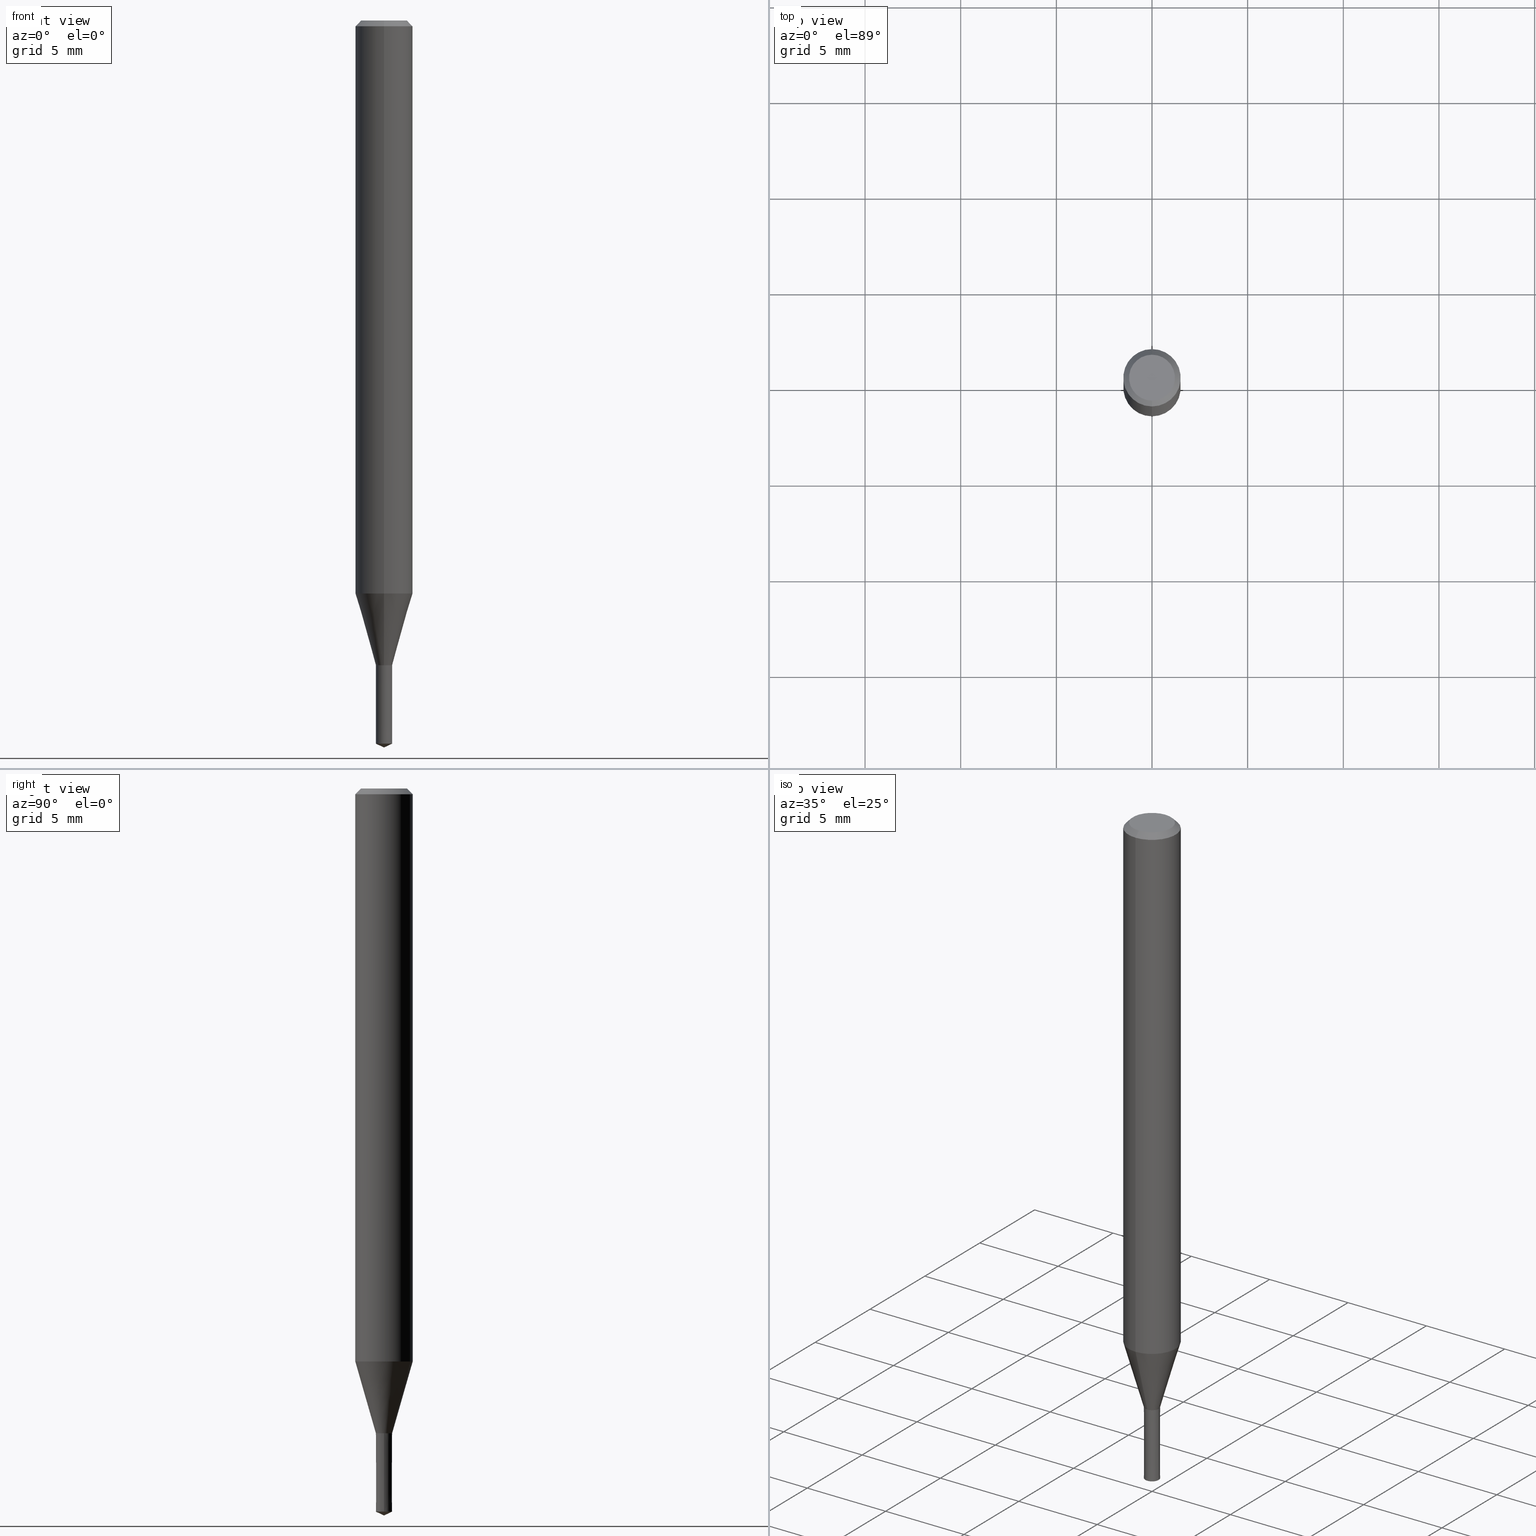
[diagram: canonical four-view strip — front | top / right | iso, engineering-drawing reading convention]
A machine part, canonical four-view strip (front | top / right | iso — engineering-drawing reading convention). The complete STEP part file that produces these views, byte-faithful:
ISO-10303-21;
HEADER;
FILE_DESCRIPTION(('no description'),'unknown implementation level');
FILE_NAME('UTDSX2085-043-Huellk.stp','  ',('CIMSOURCE GmbH'),('CADClick - KiM GmbH - www.kimweb.de'),'unknown preprocess','ACIS','unknown authorization');
FILE_SCHEMA(('automotive_design'));
ENDSEC;
DATA;
#1=MECHANICAL_DESIGN_GEOMETRIC_PRESENTATION_REPRESENTATION(' ',(#14,#15,#16,#17,#18,#19,#20,#21,#22,#23,#24,#25,#26,#27,#28,#29,#30,#31,#32,#33,#34,#35,#36,#37,#38,#39,#40,#41,#42,#43,#44,#45,#46,#47,#48,#49,#50,#51,#52,#53,#54,#55,#56,#57,#58,#59,#60,#61,#62,#63,#64,#65,#66,#67,#68,#69,#70,#71),#10);
#2=PRODUCT_DEFINITION_CONTEXT('',#72,'design');
#3=APPLICATION_PROTOCOL_DEFINITION('INTERNATIONAL STANDARD','automotive_design',1994,#72);
#4=PRODUCT_CATEGORY_RELATIONSHIP('NONE','NONE',#73,#74);
#5=SHAPE_DEFINITION_REPRESENTATION(#75,#76);
#6=PRODUCT_DEFINITION_CONTEXT('',#77,'design');
#7=APPLICATION_PROTOCOL_DEFINITION('INTERNATIONAL STANDARD','automotive_design',1994,#77);
#8=PRODUCT_CATEGORY_RELATIONSHIP('NONE','NONE',#78,#79);
#9=SHAPE_DEFINITION_REPRESENTATION(#80,#81);
#10= (GEOMETRIC_REPRESENTATION_CONTEXT(3)GLOBAL_UNCERTAINTY_ASSIGNED_CONTEXT((#84))GLOBAL_UNIT_ASSIGNED_CONTEXT((#86,#87,#88))REPRESENTATION_CONTEXT('NONE','WORKSPACE'));
#14=STYLED_ITEM('',(#90),#91);
#15=STYLED_ITEM('',(#92),#93);
#16=STYLED_ITEM('',(#94),#95);
#17=STYLED_ITEM('',(#96),#97);
#18=STYLED_ITEM('',(#98),#99);
#19=STYLED_ITEM('',(#100),#101);
#20=STYLED_ITEM('',(#102),#103);
#21=STYLED_ITEM('',(#104),#105);
#22=STYLED_ITEM('',(#106),#107);
#23=STYLED_ITEM('',(#108),#109);
#24=STYLED_ITEM('',(#110),#111);
#25=STYLED_ITEM('',(#112),#113);
#26=STYLED_ITEM('',(#114),#115);
#27=STYLED_ITEM('',(#116),#117);
#28=STYLED_ITEM('',(#118),#119);
#29=STYLED_ITEM('',(#120),#121);
#30=STYLED_ITEM('',(#122),#123);
#31=STYLED_ITEM('',(#124),#125);
#32=STYLED_ITEM('',(#126),#127);
#33=STYLED_ITEM('',(#128),#129);
#34=STYLED_ITEM('',(#130),#131);
#35=STYLED_ITEM('',(#132),#133);
#36=STYLED_ITEM('',(#134),#135);
#37=STYLED_ITEM('',(#136),#137);
#38=STYLED_ITEM('',(#138),#139);
#39=STYLED_ITEM('',(#140),#141);
#40=STYLED_ITEM('',(#142),#143);
#41=STYLED_ITEM('',(#144),#145);
#42=STYLED_ITEM('',(#146),#147);
#43=STYLED_ITEM('',(#148),#149);
#44=STYLED_ITEM('',(#150),#151);
#45=STYLED_ITEM('',(#152),#153);
#46=STYLED_ITEM('',(#154),#155);
#47=STYLED_ITEM('',(#156),#157);
#48=STYLED_ITEM('',(#158),#159);
#49=STYLED_ITEM('',(#160),#161);
#50=STYLED_ITEM('',(#162),#163);
#51=STYLED_ITEM('',(#164),#165);
#52=STYLED_ITEM('',(#166),#167);
#53=STYLED_ITEM('',(#168),#169);
#54=STYLED_ITEM('',(#170),#171);
#55=STYLED_ITEM('',(#172),#173);
#56=STYLED_ITEM('',(#174),#175);
#57=STYLED_ITEM('',(#176),#177);
#58=STYLED_ITEM('',(#178),#179);
#59=STYLED_ITEM('',(#180),#181);
#60=STYLED_ITEM('',(#182),#183);
#61=STYLED_ITEM('',(#184),#185);
#62=STYLED_ITEM('',(#186),#187);
#63=STYLED_ITEM('',(#188),#189);
#64=STYLED_ITEM('',(#190),#191);
#65=STYLED_ITEM('',(#192),#193);
#66=STYLED_ITEM('',(#194),#195);
#67=STYLED_ITEM('',(#196),#197);
#68=STYLED_ITEM('',(#198),#199);
#69=STYLED_ITEM('',(#200),#201);
#70=STYLED_ITEM('',(#202),#203);
#71=STYLED_ITEM('',(#204),#205);
#72=APPLICATION_CONTEXT(' ');
#73=PRODUCT_CATEGORY('part','NONE');
#74=PRODUCT_RELATED_PRODUCT_CATEGORY('detail',' ',(#206));
#75=PRODUCT_DEFINITION_SHAPE('NONE','NONE',#207);
#76=ADVANCED_BREP_SHAPE_REPRESENTATION('1',(#159,#208),#10);
#77=APPLICATION_CONTEXT(' ');
#78=PRODUCT_CATEGORY('part','NONE');
#79=PRODUCT_RELATED_PRODUCT_CATEGORY('detail',' ',(#209));
#80=PRODUCT_DEFINITION_SHAPE('NONE','NONE',#210);
#81=ADVANCED_BREP_SHAPE_REPRESENTATION('2',(#141,#211),#10);
#84=UNCERTAINTY_MEASURE_WITH_UNIT(LENGTH_MEASURE(1.0E-006),#86,'','');
#86= (CONVERSION_BASED_UNIT('MILLIMETRE',#214)LENGTH_UNIT()NAMED_UNIT(#217));
#87= (NAMED_UNIT(#219)PLANE_ANGLE_UNIT()SI_UNIT($,.RADIAN.));
#88= (NAMED_UNIT(#219)SOLID_ANGLE_UNIT()SI_UNIT($,.STERADIAN.));
#90=PRESENTATION_STYLE_ASSIGNMENT((#225));
#91=ADVANCED_FACE('',(#226),#227,.T.);
#92=PRESENTATION_STYLE_ASSIGNMENT((#228));
#93=EDGE_CURVE('',#163,#131,#229,.T.);
#94=PRESENTATION_STYLE_ASSIGNMENT((#230));
#95=VERTEX_POINT('',#231);
#96=PRESENTATION_STYLE_ASSIGNMENT((#232));
#97=ADVANCED_FACE('',(#233),#234,.T.);
#98=PRESENTATION_STYLE_ASSIGNMENT((#235));
#99=ADVANCED_FACE('',(#236),#237,.T.);
#100=PRESENTATION_STYLE_ASSIGNMENT((#238));
#101=ADVANCED_FACE('',(#239),#240,.T.);
#102=PRESENTATION_STYLE_ASSIGNMENT((#241));
#103=ADVANCED_FACE('',(#242),#243,.T.);
#104=PRESENTATION_STYLE_ASSIGNMENT((#244));
#105=VERTEX_POINT('',#245);
#106=PRESENTATION_STYLE_ASSIGNMENT((#246));
#107=ADVANCED_FACE('',(#247),#248,.T.);
#108=PRESENTATION_STYLE_ASSIGNMENT((#249));
#109=EDGE_CURVE('',#169,#163,#250,.T.);
#110=PRESENTATION_STYLE_ASSIGNMENT((#251));
#111=VERTEX_POINT('',#252);
#112=PRESENTATION_STYLE_ASSIGNMENT((#253));
#113=VERTEX_POINT('',#254);
#114=PRESENTATION_STYLE_ASSIGNMENT((#255));
#115=EDGE_CURVE('',#199,#173,#256,.T.);
#116=PRESENTATION_STYLE_ASSIGNMENT((#257));
#117=EDGE_CURVE('',#177,#199,#258,.T.);
#118=PRESENTATION_STYLE_ASSIGNMENT((#259));
#119=EDGE_CURVE('',#177,#105,#260,.T.);
#120=PRESENTATION_STYLE_ASSIGNMENT((#261));
#121=EDGE_CURVE('',#105,#183,#262,.T.);
#122=PRESENTATION_STYLE_ASSIGNMENT((#263));
#123=EDGE_CURVE('',#189,#131,#264,.T.);
#124=PRESENTATION_STYLE_ASSIGNMENT((#265));
#125=ADVANCED_FACE('',(#266),#267,.T.);
#126=PRESENTATION_STYLE_ASSIGNMENT((#268));
#127=EDGE_CURVE('',#183,#197,#269,.T.);
#128=PRESENTATION_STYLE_ASSIGNMENT((#270));
#129=EDGE_CURVE('',#183,#111,#271,.T.);
#130=PRESENTATION_STYLE_ASSIGNMENT((#272));
#131=VERTEX_POINT('',#273);
#132=PRESENTATION_STYLE_ASSIGNMENT((#274));
#133=EDGE_CURVE('',#111,#183,#275,.T.);
#134=PRESENTATION_STYLE_ASSIGNMENT((#276));
#135=EDGE_CURVE('',#199,#113,#277,.T.);
#136=PRESENTATION_STYLE_ASSIGNMENT((#278));
#137=EDGE_CURVE('',#167,#197,#279,.T.);
#138=PRESENTATION_STYLE_ASSIGNMENT((#280));
#139=EDGE_CURVE('',#131,#189,#281,.T.);
#140=PRESENTATION_STYLE_ASSIGNMENT((#282));
#141=MANIFOLD_SOLID_BREP('2',#283);
#142=PRESENTATION_STYLE_ASSIGNMENT((#284));
#143=EDGE_CURVE('',#95,#113,#285,.T.);
#144=PRESENTATION_STYLE_ASSIGNMENT((#286));
#145=ADVANCED_FACE('',(#287),#288,.T.);
#146=PRESENTATION_STYLE_ASSIGNMENT((#289));
#147=EDGE_CURVE('',#111,#177,#290,.T.);
#148=PRESENTATION_STYLE_ASSIGNMENT((#291));
#149=EDGE_CURVE('',#163,#169,#292,.T.);
#150=PRESENTATION_STYLE_ASSIGNMENT((#293));
#151=EDGE_CURVE('',#113,#105,#294,.T.);
#152=PRESENTATION_STYLE_ASSIGNMENT((#295));
#153=ADVANCED_FACE('',(#296),#297,.T.);
#154=PRESENTATION_STYLE_ASSIGNMENT((#298));
#155=EDGE_CURVE('',#131,#157,#299,.T.);
#156=PRESENTATION_STYLE_ASSIGNMENT((#300));
#157=VERTEX_POINT('',#301);
#158=PRESENTATION_STYLE_ASSIGNMENT((#302));
#159=MANIFOLD_SOLID_BREP('1',#303);
#160=PRESENTATION_STYLE_ASSIGNMENT((#304));
#161=EDGE_CURVE('',#95,#173,#305,.T.);
#162=PRESENTATION_STYLE_ASSIGNMENT((#306));
#163=VERTEX_POINT('',#307);
#164=PRESENTATION_STYLE_ASSIGNMENT((#308));
#165=ADVANCED_FACE('',(#309),#310,.T.);
#166=PRESENTATION_STYLE_ASSIGNMENT((#311));
#167=VERTEX_POINT('',#312);
#168=PRESENTATION_STYLE_ASSIGNMENT((#313));
#169=VERTEX_POINT('',#314);
#170=PRESENTATION_STYLE_ASSIGNMENT((#315));
#171=EDGE_CURVE('',#157,#189,#316,.T.);
#172=PRESENTATION_STYLE_ASSIGNMENT((#317));
#173=VERTEX_POINT('',#318);
#174=PRESENTATION_STYLE_ASSIGNMENT((#319));
#175=EDGE_CURVE('',#105,#177,#320,.T.);
#176=PRESENTATION_STYLE_ASSIGNMENT((#321));
#177=VERTEX_POINT('',#322);
#178=PRESENTATION_STYLE_ASSIGNMENT((#323));
#179=ADVANCED_FACE('',(#324),#325,.T.);
#180=PRESENTATION_STYLE_ASSIGNMENT((#326));
#181=EDGE_CURVE('',#173,#95,#327,.T.);
#182=PRESENTATION_STYLE_ASSIGNMENT((#328));
#183=VERTEX_POINT('',#329);
#184=PRESENTATION_STYLE_ASSIGNMENT((#330));
#185=EDGE_CURVE('',#197,#167,#331,.T.);
#186=PRESENTATION_STYLE_ASSIGNMENT((#332));
#187=EDGE_CURVE('',#189,#169,#333,.T.);
#188=PRESENTATION_STYLE_ASSIGNMENT((#334));
#189=VERTEX_POINT('',#335);
#190=PRESENTATION_STYLE_ASSIGNMENT((#336));
#191=EDGE_CURVE('',#167,#111,#337,.T.);
#192=PRESENTATION_STYLE_ASSIGNMENT((#338));
#193=EDGE_CURVE('',#113,#199,#339,.T.);
#194=PRESENTATION_STYLE_ASSIGNMENT((#340));
#195=ADVANCED_FACE('',(#341),#342,.T.);
#196=PRESENTATION_STYLE_ASSIGNMENT((#343));
#197=VERTEX_POINT('',#344);
#198=PRESENTATION_STYLE_ASSIGNMENT((#345));
#199=VERTEX_POINT('',#346);
#200=PRESENTATION_STYLE_ASSIGNMENT((#347));
#201=ADVANCED_FACE('',(#348),#349,.T.);
#202=PRESENTATION_STYLE_ASSIGNMENT((#350));
#203=ADVANCED_FACE('',(#351),#352,.T.);
#204=PRESENTATION_STYLE_ASSIGNMENT((#353));
#205=ADVANCED_FACE('',(#354),#355,.T.);
#206=PRODUCT('1','1','PART-1-DESC',(#356));
#207=PRODUCT_DEFINITION('NONE','NONE',#357,#2);
#208=AXIS2_PLACEMENT_3D('',#358,#359,#360);
#209=PRODUCT('2','2','PART-2-DESC',(#361));
#210=PRODUCT_DEFINITION('NONE','NONE',#362,#6);
#211=AXIS2_PLACEMENT_3D('',#363,#364,#365);
#214=LENGTH_MEASURE_WITH_UNIT(LENGTH_MEASURE(1.0),#366);
#217=DIMENSIONAL_EXPONENTS(1.0,0.0,0.0,0.0,0.0,0.0,0.0);
#219=DIMENSIONAL_EXPONENTS(0.0,0.0,0.0,0.0,0.0,0.0,0.0);
#225=SURFACE_STYLE_USAGE(.BOTH.,#367);
#226=FACE_OUTER_BOUND('',#368,.T.);
#227=PLANE('',#369);
#228=CURVE_STYLE('',#370,POSITIVE_LENGTH_MEASURE(1.0E-006),#371);
#229=LINE('',#372,#373);
#230=POINT_STYLE(' ',#374,POSITIVE_LENGTH_MEASURE(1.0E-006),#375);
#231=CARTESIAN_POINT('',(0.0,1.2,0.0));
#232=SURFACE_STYLE_USAGE(.BOTH.,#376);
#233=FACE_OUTER_BOUND('',#377,.T.);
#234=CONICAL_SURFACE('',#378,0.9625,0.279311816116806);
#235=SURFACE_STYLE_USAGE(.BOTH.,#379);
#236=FACE_OUTER_BOUND('',#380,.T.);
#237=PLANE('',#381);
#238=SURFACE_STYLE_USAGE(.BOTH.,#382);
#239=FACE_OUTER_BOUND('',#383,.T.);
#240=CONICAL_SURFACE('',#384,1.35,0.785398163397447);
#241=SURFACE_STYLE_USAGE(.BOTH.,#385);
#242=FACE_OUTER_BOUND('',#386,.T.);
#243=CONICAL_SURFACE('',#387,0.2125,1.13446402291064);
#244=POINT_STYLE(' ',#388,POSITIVE_LENGTH_MEASURE(1.0E-006),#389);
#245=CARTESIAN_POINT('',(0.0,1.5,-29.951));
#246=SURFACE_STYLE_USAGE(.BOTH.,#390);
#247=FACE_OUTER_BOUND('',#391,.T.);
#248=PLANE('',#392);
#249=CURVE_STYLE('',#393,POSITIVE_LENGTH_MEASURE(1.0E-006),#394);
#250=CIRCLE('',#395,0.426);
#251=POINT_STYLE(' ',#396,POSITIVE_LENGTH_MEASURE(1.0E-006),#397);
#252=CARTESIAN_POINT('',(5.2045770037451E-017,-0.425,-33.6991339745962));
#253=POINT_STYLE(' ',#398,POSITIVE_LENGTH_MEASURE(1.0E-006),#399);
#254=CARTESIAN_POINT('',(0.0,1.5,-0.300000000000001));
#255=CURVE_STYLE('',#400,POSITIVE_LENGTH_MEASURE(1.0E-006),#401);
#256=LINE('',#402,#403);
#257=CURVE_STYLE('',#404,POSITIVE_LENGTH_MEASURE(1.0E-006),#405);
#258=LINE('',#406,#407);
#259=CURVE_STYLE('',#408,POSITIVE_LENGTH_MEASURE(1.0E-006),#409);
#260=CIRCLE('',#410,1.5);
#261=CURVE_STYLE('',#411,POSITIVE_LENGTH_MEASURE(1.0E-006),#412);
#262=LINE('',#413,#414);
#263=CURVE_STYLE('',#415,POSITIVE_LENGTH_MEASURE(1.0E-006),#416);
#264=CIRCLE('',#417,0.425);
#265=SURFACE_STYLE_USAGE(.BOTH.,#418);
#266=FACE_OUTER_BOUND('',#419,.T.);
#267=CONICAL_SURFACE('',#420,1.35,0.785398163397447);
#268=CURVE_STYLE('',#421,POSITIVE_LENGTH_MEASURE(1.0E-006),#422);
#269=LINE('',#423,#424);
#270=CURVE_STYLE('',#425,POSITIVE_LENGTH_MEASURE(1.0E-006),#426);
#271=CIRCLE('',#427,0.425);
#272=POINT_STYLE(' ',#428,POSITIVE_LENGTH_MEASURE(1.0E-006),#429);
#273=CARTESIAN_POINT('',(-0.425,0.0,-37.80181925));
#274=CURVE_STYLE('',#430,POSITIVE_LENGTH_MEASURE(1.0E-006),#431);
#275=CIRCLE('',#432,0.425);
#276=CURVE_STYLE('',#433,POSITIVE_LENGTH_MEASURE(1.0E-006),#434);
#277=CIRCLE('',#435,1.5);
#278=CURVE_STYLE('',#436,POSITIVE_LENGTH_MEASURE(1.0E-006),#437);
#279=CIRCLE('',#438,0.4255);
#280=CURVE_STYLE('',#439,POSITIVE_LENGTH_MEASURE(1.0E-006),#440);
#281=CIRCLE('',#441,0.425);
#282=SURFACE_STYLE_USAGE(.BOTH.,#442);
#283=CLOSED_SHELL('',(#103,#153,#107,#179,#205));
#284=CURVE_STYLE('',#443,POSITIVE_LENGTH_MEASURE(1.0E-006),#444);
#285=LINE('',#445,#446);
#286=SURFACE_STYLE_USAGE(.BOTH.,#447);
#287=FACE_OUTER_BOUND('',#448,.T.);
#288=CONICAL_SURFACE('',#449,0.9625,0.279311816116806);
#289=CURVE_STYLE('',#450,POSITIVE_LENGTH_MEASURE(1.0E-006),#451);
#290=LINE('',#452,#453);
#291=CURVE_STYLE('',#454,POSITIVE_LENGTH_MEASURE(1.0E-006),#455);
#292=CIRCLE('',#456,0.426);
#293=CURVE_STYLE('',#457,POSITIVE_LENGTH_MEASURE(1.0E-006),#458);
#294=LINE('',#459,#460);
#295=SURFACE_STYLE_USAGE(.BOTH.,#461);
#296=FACE_OUTER_BOUND('',#462,.T.);
#297=CONICAL_SURFACE('',#463,0.4255,0.000243794257923023);
#298=CURVE_STYLE('',#464,POSITIVE_LENGTH_MEASURE(1.0E-006),#465);
#299=LINE('',#466,#467);
#300=POINT_STYLE(' ',#468,POSITIVE_LENGTH_MEASURE(1.0E-006),#469);
#301=CARTESIAN_POINT('',(0.0,0.0,-38.0));
#302=SURFACE_STYLE_USAGE(.BOTH.,#470);
#303=CLOSED_SHELL('',(#195,#97,#203,#101,#99,#125,#165,#145,#201,#91));
#304=CURVE_STYLE('',#471,POSITIVE_LENGTH_MEASURE(1.0E-006),#472);
#305=CIRCLE('',#473,1.2);
#306=POINT_STYLE(' ',#474,POSITIVE_LENGTH_MEASURE(1.0E-006),#475);
#307=CARTESIAN_POINT('',(-0.426,0.0,-33.7));
#308=SURFACE_STYLE_USAGE(.BOTH.,#476);
#309=FACE_OUTER_BOUND('',#477,.T.);
#310=CYLINDRICAL_SURFACE('',#478,1.5);
#311=POINT_STYLE(' ',#479,POSITIVE_LENGTH_MEASURE(1.0E-006),#480);
#312=CARTESIAN_POINT('',(5.21070003551421E-017,-0.4255,-33.7));
#313=POINT_STYLE(' ',#481,POSITIVE_LENGTH_MEASURE(1.0E-006),#482);
#314=CARTESIAN_POINT('',(0.426,5.21682306728333E-017,-33.7));
#315=CURVE_STYLE('',#483,POSITIVE_LENGTH_MEASURE(1.0E-006),#484);
#316=LINE('',#485,#486);
#317=POINT_STYLE(' ',#487,POSITIVE_LENGTH_MEASURE(1.0E-006),#488);
#318=CARTESIAN_POINT('',(1.46952762458685E-016,-1.2,0.0));
#319=CURVE_STYLE('',#489,POSITIVE_LENGTH_MEASURE(1.0E-006),#490);
#320=CIRCLE('',#491,1.5);
#321=POINT_STYLE(' ',#492,POSITIVE_LENGTH_MEASURE(1.0E-006),#493);
#322=CARTESIAN_POINT('',(1.83690953073357E-016,-1.5,-29.951));
#323=SURFACE_STYLE_USAGE(.BOTH.,#494);
#324=FACE_OUTER_BOUND('',#495,.T.);
#325=CONICAL_SURFACE('',#496,0.4255,0.000243794257923023);
#326=CURVE_STYLE('',#497,POSITIVE_LENGTH_MEASURE(1.0E-006),#498);
#327=CIRCLE('',#499,1.2);
#328=POINT_STYLE(' ',#500,POSITIVE_LENGTH_MEASURE(1.0E-006),#501);
#329=CARTESIAN_POINT('',(0.0,0.425,-33.6991339745962));
#330=CURVE_STYLE('',#502,POSITIVE_LENGTH_MEASURE(1.0E-006),#503);
#331=CIRCLE('',#504,0.4255);
#332=CURVE_STYLE('',#505,POSITIVE_LENGTH_MEASURE(1.0E-006),#506);
#333=LINE('',#507,#508);
#334=POINT_STYLE(' ',#509,POSITIVE_LENGTH_MEASURE(1.0E-006),#510);
#335=CARTESIAN_POINT('',(0.425,5.2045770037451E-017,-37.80181925));
#336=CURVE_STYLE('',#511,POSITIVE_LENGTH_MEASURE(1.0E-006),#512);
#337=LINE('',#513,#514);
#338=CURVE_STYLE('',#515,POSITIVE_LENGTH_MEASURE(1.0E-006),#516);
#339=CIRCLE('',#517,1.5);
#340=SURFACE_STYLE_USAGE(.BOTH.,#518);
#341=FACE_OUTER_BOUND('',#519,.T.);
#342=CONICAL_SURFACE('',#520,0.42525,0.523598775598408);
#343=POINT_STYLE(' ',#521,POSITIVE_LENGTH_MEASURE(1.0E-006),#522);
#344=CARTESIAN_POINT('',(0.0,0.4255,-33.7));
#345=POINT_STYLE(' ',#523,POSITIVE_LENGTH_MEASURE(1.0E-006),#524);
#346=CARTESIAN_POINT('',(1.83690953073357E-016,-1.5,-0.300000000000001));
#347=SURFACE_STYLE_USAGE(.BOTH.,#525);
#348=FACE_OUTER_BOUND('',#526,.T.);
#349=CONICAL_SURFACE('',#527,0.42525,0.523598775598408);
#350=SURFACE_STYLE_USAGE(.BOTH.,#528);
#351=FACE_OUTER_BOUND('',#529,.T.);
#352=CYLINDRICAL_SURFACE('',#530,1.5);
#353=SURFACE_STYLE_USAGE(.BOTH.,#531);
#354=FACE_OUTER_BOUND('',#532,.T.);
#355=CONICAL_SURFACE('',#533,0.2125,1.13446402291064);
#356=PRODUCT_CONTEXT('',#72,'mechanical');
#357=PRODUCT_DEFINITION_FORMATION_WITH_SPECIFIED_SOURCE(' ','NONE',#206,.NOT_KNOWN.);
#358=CARTESIAN_POINT('',(0.0,0.0,0.0));
#359=DIRECTION('',(0.0,0.0,1.0));
#360=DIRECTION('',(1.0,0.0,0.0));
#361=PRODUCT_CONTEXT('',#77,'mechanical');
#362=PRODUCT_DEFINITION_FORMATION_WITH_SPECIFIED_SOURCE(' ','NONE',#209,.NOT_KNOWN.);
#363=CARTESIAN_POINT('',(0.0,0.0,0.0));
#364=DIRECTION('',(0.0,0.0,1.0));
#365=DIRECTION('',(1.0,0.0,0.0));
#366= (NAMED_UNIT(#217)LENGTH_UNIT()SI_UNIT(.MILLI.,.METRE.));
#367=SURFACE_SIDE_STYLE('',(#535));
#368=EDGE_LOOP('',(#536,#537));
#369=AXIS2_PLACEMENT_3D('',#538,#539,#540);
#370=DRAUGHTING_PRE_DEFINED_CURVE_FONT('continuous');
#371=COLOUR_RGB('',0.800000011920929,0.800000011920929,0.800000011920929);
#372=CARTESIAN_POINT('',(-0.4255,-5.21070003551422E-017,-35.750909625));
#373=VECTOR('',#541,1.0);
#374=PRE_DEFINED_MARKER('');
#375=COLOUR_RGB('',0.498039215803146,0.498039215803146,0.498039215803146);
#376=SURFACE_SIDE_STYLE('',(#542));
#377=EDGE_LOOP('',(#543,#544,#545,#546));
#378=AXIS2_PLACEMENT_3D('',#547,#548,#549);
#379=SURFACE_SIDE_STYLE('',(#550));
#380=EDGE_LOOP('',(#551,#552));
#381=AXIS2_PLACEMENT_3D('',#553,#554,#555);
#382=SURFACE_SIDE_STYLE('',(#556));
#383=EDGE_LOOP('',(#557,#558,#559,#560));
#384=AXIS2_PLACEMENT_3D('',#561,#562,#563);
#385=SURFACE_SIDE_STYLE('',(#564));
#386=EDGE_LOOP('',(#565,#566,#567));
#387=AXIS2_PLACEMENT_3D('',#568,#569,#570);
#388=PRE_DEFINED_MARKER('');
#389=COLOUR_RGB('',0.498039215803146,0.498039215803146,0.498039215803146);
#390=SURFACE_SIDE_STYLE('',(#571));
#391=EDGE_LOOP('',(#572,#573));
#392=AXIS2_PLACEMENT_3D('',#574,#575,#576);
#393=DRAUGHTING_PRE_DEFINED_CURVE_FONT('continuous');
#394=COLOUR_RGB('',0.800000011920929,0.800000011920929,0.800000011920929);
#395=AXIS2_PLACEMENT_3D('',#577,#578,#579);
#396=PRE_DEFINED_MARKER('');
#397=COLOUR_RGB('',0.498039215803146,0.498039215803146,0.498039215803146);
#398=PRE_DEFINED_MARKER('');
#399=COLOUR_RGB('',0.498039215803146,0.498039215803146,0.498039215803146);
#400=DRAUGHTING_PRE_DEFINED_CURVE_FONT('continuous');
#401=COLOUR_RGB('',0.498039215803146,0.498039215803146,0.498039215803146);
#402=CARTESIAN_POINT('',(1.65321857766021E-016,-1.35,-0.150000000000002));
#403=VECTOR('',#580,1.0);
#404=DRAUGHTING_PRE_DEFINED_CURVE_FONT('continuous');
#405=COLOUR_RGB('',0.498039215803146,0.498039215803146,0.498039215803146);
#406=CARTESIAN_POINT('',(1.83690953073357E-016,-1.5,-15.1255));
#407=VECTOR('',#581,1.0);
#408=DRAUGHTING_PRE_DEFINED_CURVE_FONT('continuous');
#409=COLOUR_RGB('',0.498039215803146,0.498039215803146,0.498039215803146);
#410=AXIS2_PLACEMENT_3D('',#582,#583,#584);
#411=DRAUGHTING_PRE_DEFINED_CURVE_FONT('continuous');
#412=COLOUR_RGB('',0.498039215803146,0.498039215803146,0.498039215803146);
#413=CARTESIAN_POINT('',(-1.17868361555404E-016,0.9625,-31.8250669872981));
#414=VECTOR('',#585,1.0);
#415=DRAUGHTING_PRE_DEFINED_CURVE_FONT('continuous');
#416=COLOUR_RGB('',0.800000011920929,0.800000011920929,0.800000011920929);
#417=AXIS2_PLACEMENT_3D('',#586,#587,#588);
#418=SURFACE_SIDE_STYLE('',(#589));
#419=EDGE_LOOP('',(#590,#591,#592,#593));
#420=AXIS2_PLACEMENT_3D('',#594,#595,#596);
#421=DRAUGHTING_PRE_DEFINED_CURVE_FONT('continuous');
#422=COLOUR_RGB('',0.498039215803146,0.498039215803146,0.498039215803146);
#423=CARTESIAN_POINT('',(-5.20763851962966E-017,0.42525,-33.6995669872981));
#424=VECTOR('',#597,1.0);
#425=DRAUGHTING_PRE_DEFINED_CURVE_FONT('continuous');
#426=COLOUR_RGB('',0.498039215803146,0.498039215803146,0.498039215803146);
#427=AXIS2_PLACEMENT_3D('',#598,#599,#600);
#428=PRE_DEFINED_MARKER('');
#429=COLOUR_RGB('',0.800000011920929,0.800000011920929,0.800000011920929);
#430=DRAUGHTING_PRE_DEFINED_CURVE_FONT('continuous');
#431=COLOUR_RGB('',0.498039215803146,0.498039215803146,0.498039215803146);
#432=AXIS2_PLACEMENT_3D('',#601,#602,#603);
#433=DRAUGHTING_PRE_DEFINED_CURVE_FONT('continuous');
#434=COLOUR_RGB('',0.498039215803146,0.498039215803146,0.498039215803146);
#435=AXIS2_PLACEMENT_3D('',#604,#605,#606);
#436=DRAUGHTING_PRE_DEFINED_CURVE_FONT('continuous');
#437=COLOUR_RGB('',0.498039215803146,0.498039215803146,0.498039215803146);
#438=AXIS2_PLACEMENT_3D('',#607,#608,#609);
#439=DRAUGHTING_PRE_DEFINED_CURVE_FONT('continuous');
#440=COLOUR_RGB('',0.800000011920929,0.800000011920929,0.800000011920929);
#441=AXIS2_PLACEMENT_3D('',#610,#611,#612);
#442=SURFACE_SIDE_STYLE('',(#613));
#443=DRAUGHTING_PRE_DEFINED_CURVE_FONT('continuous');
#444=COLOUR_RGB('',0.498039215803146,0.498039215803146,0.498039215803146);
#445=CARTESIAN_POINT('',(-1.65321857766021E-016,1.35,-0.150000000000002));
#446=VECTOR('',#614,1.0);
#447=SURFACE_SIDE_STYLE('',(#615));
#448=EDGE_LOOP('',(#616,#617,#618,#619));
#449=AXIS2_PLACEMENT_3D('',#620,#621,#622);
#450=DRAUGHTING_PRE_DEFINED_CURVE_FONT('continuous');
#451=COLOUR_RGB('',0.498039215803146,0.498039215803146,0.498039215803146);
#452=CARTESIAN_POINT('',(1.17868361555404E-016,-0.9625,-31.8250669872981));
#453=VECTOR('',#623,1.0);
#454=DRAUGHTING_PRE_DEFINED_CURVE_FONT('continuous');
#455=COLOUR_RGB('',0.800000011920929,0.800000011920929,0.800000011920929);
#456=AXIS2_PLACEMENT_3D('',#624,#625,#626);
#457=DRAUGHTING_PRE_DEFINED_CURVE_FONT('continuous');
#458=COLOUR_RGB('',0.498039215803146,0.498039215803146,0.498039215803146);
#459=CARTESIAN_POINT('',(-1.83690953073357E-016,1.5,-15.1255));
#460=VECTOR('',#627,1.0);
#461=SURFACE_SIDE_STYLE('',(#628));
#462=EDGE_LOOP('',(#629,#630,#631,#632));
#463=AXIS2_PLACEMENT_3D('',#633,#634,#635);
#464=DRAUGHTING_PRE_DEFINED_CURVE_FONT('continuous');
#465=COLOUR_RGB('',0.800000011920929,0.800000011920929,0.800000011920929);
#466=CARTESIAN_POINT('',(-0.2125,-2.60228850187255E-017,-37.900909625));
#467=VECTOR('',#636,1.0);
#468=PRE_DEFINED_MARKER('');
#469=COLOUR_RGB('',0.800000011920929,0.800000011920929,0.800000011920929);
#470=SURFACE_SIDE_STYLE('',(#637));
#471=DRAUGHTING_PRE_DEFINED_CURVE_FONT('continuous');
#472=COLOUR_RGB('',0.498039215803146,0.498039215803146,0.498039215803146);
#473=AXIS2_PLACEMENT_3D('',#638,#639,#640);
#474=PRE_DEFINED_MARKER('');
#475=COLOUR_RGB('',0.800000011920929,0.800000011920929,0.800000011920929);
#476=SURFACE_SIDE_STYLE('',(#641));
#477=EDGE_LOOP('',(#642,#643,#644,#645));
#478=AXIS2_PLACEMENT_3D('',#646,#647,#648);
#479=PRE_DEFINED_MARKER('');
#480=COLOUR_RGB('',0.498039215803146,0.498039215803146,0.498039215803146);
#481=PRE_DEFINED_MARKER('');
#482=COLOUR_RGB('',0.800000011920929,0.800000011920929,0.800000011920929);
#483=DRAUGHTING_PRE_DEFINED_CURVE_FONT('continuous');
#484=COLOUR_RGB('',0.800000011920929,0.800000011920929,0.800000011920929);
#485=CARTESIAN_POINT('',(0.2125,2.60228850187255E-017,-37.900909625));
#486=VECTOR('',#649,1.0);
#487=PRE_DEFINED_MARKER('');
#488=COLOUR_RGB('',0.498039215803146,0.498039215803146,0.498039215803146);
#489=DRAUGHTING_PRE_DEFINED_CURVE_FONT('continuous');
#490=COLOUR_RGB('',0.498039215803146,0.498039215803146,0.498039215803146);
#491=AXIS2_PLACEMENT_3D('',#650,#651,#652);
#492=PRE_DEFINED_MARKER('');
#493=COLOUR_RGB('',0.498039215803146,0.498039215803146,0.498039215803146);
#494=SURFACE_SIDE_STYLE('',(#653));
#495=EDGE_LOOP('',(#654,#655,#656,#657));
#496=AXIS2_PLACEMENT_3D('',#658,#659,#660);
#497=DRAUGHTING_PRE_DEFINED_CURVE_FONT('continuous');
#498=COLOUR_RGB('',0.498039215803146,0.498039215803146,0.498039215803146);
#499=AXIS2_PLACEMENT_3D('',#661,#662,#663);
#500=PRE_DEFINED_MARKER('');
#501=COLOUR_RGB('',0.498039215803146,0.498039215803146,0.498039215803146);
#502=DRAUGHTING_PRE_DEFINED_CURVE_FONT('continuous');
#503=COLOUR_RGB('',0.498039215803146,0.498039215803146,0.498039215803146);
#504=AXIS2_PLACEMENT_3D('',#664,#665,#666);
#505=DRAUGHTING_PRE_DEFINED_CURVE_FONT('continuous');
#506=COLOUR_RGB('',0.800000011920929,0.800000011920929,0.800000011920929);
#507=CARTESIAN_POINT('',(0.4255,5.21070003551421E-017,-35.750909625));
#508=VECTOR('',#667,1.0);
#509=PRE_DEFINED_MARKER('');
#510=COLOUR_RGB('',0.800000011920929,0.800000011920929,0.800000011920929);
#511=DRAUGHTING_PRE_DEFINED_CURVE_FONT('continuous');
#512=COLOUR_RGB('',0.498039215803146,0.498039215803146,0.498039215803146);
#513=CARTESIAN_POINT('',(5.20763851962966E-017,-0.42525,-33.6995669872981));
#514=VECTOR('',#668,1.0);
#515=DRAUGHTING_PRE_DEFINED_CURVE_FONT('continuous');
#516=COLOUR_RGB('',0.498039215803146,0.498039215803146,0.498039215803146);
#517=AXIS2_PLACEMENT_3D('',#669,#670,#671);
#518=SURFACE_SIDE_STYLE('',(#672));
#519=EDGE_LOOP('',(#673,#674,#675,#676));
#520=AXIS2_PLACEMENT_3D('',#677,#678,#679);
#521=PRE_DEFINED_MARKER('');
#522=COLOUR_RGB('',0.498039215803146,0.498039215803146,0.498039215803146);
#523=PRE_DEFINED_MARKER('');
#524=COLOUR_RGB('',0.498039215803146,0.498039215803146,0.498039215803146);
#525=SURFACE_SIDE_STYLE('',(#680));
#526=EDGE_LOOP('',(#681,#682,#683,#684));
#527=AXIS2_PLACEMENT_3D('',#685,#686,#687);
#528=SURFACE_SIDE_STYLE('',(#688));
#529=EDGE_LOOP('',(#689,#690,#691,#692));
#530=AXIS2_PLACEMENT_3D('',#693,#694,#695);
#531=SURFACE_SIDE_STYLE('',(#696));
#532=EDGE_LOOP('',(#697,#698,#699));
#533=AXIS2_PLACEMENT_3D('',#700,#701,#702);
#535=SURFACE_STYLE_FILL_AREA(#703);
#536=ORIENTED_EDGE('',*,*,#185,.T.);
#537=ORIENTED_EDGE('',*,*,#137,.T.);
#538=CARTESIAN_POINT('',(0.0,0.21275,-33.7));
#539=DIRECTION('',(0.0,0.0,-1.0));
#540=DIRECTION('',(0.0,1.0,0.0));
#541=DIRECTION('',(0.000243794255508012,2.98551994320507E-020,-0.99999997028218));
#542=SURFACE_STYLE_FILL_AREA(#704);
#543=ORIENTED_EDGE('',*,*,#121,.F.);
#544=ORIENTED_EDGE('',*,*,#175,.T.);
#545=ORIENTED_EDGE('',*,*,#147,.F.);
#546=ORIENTED_EDGE('',*,*,#129,.F.);
#547=CARTESIAN_POINT('',(0.0,0.0,-31.8250669872981));
#548=DIRECTION('',(-0.0,-0.0,1.0));
#549=DIRECTION('',(0.0,1.0,0.0));
#550=SURFACE_STYLE_FILL_AREA(#705);
#551=ORIENTED_EDGE('',*,*,#161,.F.);
#552=ORIENTED_EDGE('',*,*,#181,.F.);
#553=CARTESIAN_POINT('',(0.0,0.6,0.0));
#554=DIRECTION('',(-0.0,0.0,1.0));
#555=DIRECTION('',(0.0,-1.0,0.0));
#556=SURFACE_STYLE_FILL_AREA(#706);
#557=ORIENTED_EDGE('',*,*,#143,.F.);
#558=ORIENTED_EDGE('',*,*,#161,.T.);
#559=ORIENTED_EDGE('',*,*,#115,.F.);
#560=ORIENTED_EDGE('',*,*,#193,.F.);
#561=CARTESIAN_POINT('',(0.0,0.0,-0.150000000000002));
#562=DIRECTION('',(0.0,-0.0,-1.0));
#563=DIRECTION('',(0.0,1.0,0.0));
#564=SURFACE_STYLE_FILL_AREA(#707);
#565=ORIENTED_EDGE('',*,*,#171,.F.);
#566=ORIENTED_EDGE('',*,*,#155,.F.);
#567=ORIENTED_EDGE('',*,*,#139,.T.);
#568=CARTESIAN_POINT('',(0.0,0.0,-37.900909625));
#569=DIRECTION('',(-0.0,-0.0,1.0));
#570=DIRECTION('',(-1.0,0.0,0.0));
#571=SURFACE_STYLE_FILL_AREA(#708);
#572=ORIENTED_EDGE('',*,*,#149,.F.);
#573=ORIENTED_EDGE('',*,*,#109,.F.);
#574=CARTESIAN_POINT('',(-0.213,0.0,-33.7));
#575=DIRECTION('',(0.0,0.0,1.0));
#576=DIRECTION('',(1.0,0.0,0.0));
#577=CARTESIAN_POINT('',(0.0,0.0,-33.7));
#578=DIRECTION('',(0.0,0.0,-1.0));
#579=DIRECTION('',(-1.0,0.0,0.0));
#580=DIRECTION('',(-8.65927457071934E-017,0.707106781186546,0.707106781186549));
#581=DIRECTION('',(-0.0,-0.0,1.0));
#582=CARTESIAN_POINT('',(0.0,0.0,-29.951));
#583=DIRECTION('',(0.0,0.0,-1.0));
#584=DIRECTION('',(0.0,1.0,0.0));
#585=DIRECTION('',(3.3761686941431E-017,-0.275694200312208,-0.961245394222626));
#586=CARTESIAN_POINT('',(0.0,0.0,-37.80181925));
#587=DIRECTION('',(0.0,0.0,-1.0));
#588=DIRECTION('',(-1.0,0.0,0.0));
#589=SURFACE_STYLE_FILL_AREA(#709);
#590=ORIENTED_EDGE('',*,*,#143,.T.);
#591=ORIENTED_EDGE('',*,*,#135,.F.);
#592=ORIENTED_EDGE('',*,*,#115,.T.);
#593=ORIENTED_EDGE('',*,*,#181,.T.);
#594=CARTESIAN_POINT('',(0.0,0.0,-0.150000000000002));
#595=DIRECTION('',(0.0,-0.0,-1.0));
#596=DIRECTION('',(0.0,1.0,0.0));
#597=DIRECTION('',(-6.123031769113E-017,0.500000000000091,-0.866025403784386));
#598=CARTESIAN_POINT('',(0.0,0.0,-33.6991339745962));
#599=DIRECTION('',(0.0,0.0,-1.0));
#600=DIRECTION('',(0.0,1.0,0.0));
#601=CARTESIAN_POINT('',(0.0,0.0,-33.6991339745962));
#602=DIRECTION('',(0.0,0.0,-1.0));
#603=DIRECTION('',(0.0,1.0,0.0));
#604=CARTESIAN_POINT('',(0.0,0.0,-0.300000000000001));
#605=DIRECTION('',(0.0,0.0,-1.0));
#606=DIRECTION('',(0.0,1.0,0.0));
#607=CARTESIAN_POINT('',(0.0,0.0,-33.7));
#608=DIRECTION('',(0.0,0.0,-1.0));
#609=DIRECTION('',(0.0,1.0,0.0));
#610=CARTESIAN_POINT('',(0.0,0.0,-37.80181925));
#611=DIRECTION('',(0.0,0.0,-1.0));
#612=DIRECTION('',(-1.0,0.0,0.0));
#613=SURFACE_STYLE_FILL_AREA(#710);
#614=DIRECTION('',(-8.65927457071934E-017,0.707106781186546,-0.707106781186549));
#615=SURFACE_STYLE_FILL_AREA(#711);
#616=ORIENTED_EDGE('',*,*,#121,.T.);
#617=ORIENTED_EDGE('',*,*,#133,.F.);
#618=ORIENTED_EDGE('',*,*,#147,.T.);
#619=ORIENTED_EDGE('',*,*,#119,.T.);
#620=CARTESIAN_POINT('',(0.0,0.0,-31.8250669872981));
#621=DIRECTION('',(-0.0,-0.0,1.0));
#622=DIRECTION('',(0.0,1.0,0.0));
#623=DIRECTION('',(3.3761686941431E-017,-0.275694200312208,0.961245394222626));
#624=CARTESIAN_POINT('',(0.0,0.0,-33.7));
#625=DIRECTION('',(0.0,0.0,-1.0));
#626=DIRECTION('',(-1.0,0.0,0.0));
#627=DIRECTION('',(0.0,0.0,-1.0));
#628=SURFACE_STYLE_FILL_AREA(#712);
#629=ORIENTED_EDGE('',*,*,#93,.F.);
#630=ORIENTED_EDGE('',*,*,#149,.T.);
#631=ORIENTED_EDGE('',*,*,#187,.F.);
#632=ORIENTED_EDGE('',*,*,#139,.F.);
#633=CARTESIAN_POINT('',(0.0,0.0,-35.750909625));
#634=DIRECTION('',(-0.0,-0.0,1.0));
#635=DIRECTION('',(-1.0,0.0,0.0));
#636=DIRECTION('',(0.906307790888521,1.1098702792408E-016,-0.422618253480336));
#637=SURFACE_STYLE_FILL_AREA(#713);
#638=CARTESIAN_POINT('',(0.0,0.0,0.0));
#639=DIRECTION('',(0.0,0.0,-1.0));
#640=DIRECTION('',(0.0,1.0,0.0));
#641=SURFACE_STYLE_FILL_AREA(#714);
#642=ORIENTED_EDGE('',*,*,#151,.T.);
#643=ORIENTED_EDGE('',*,*,#119,.F.);
#644=ORIENTED_EDGE('',*,*,#117,.T.);
#645=ORIENTED_EDGE('',*,*,#135,.T.);
#646=CARTESIAN_POINT('',(0.0,0.0,-15.1255));
#647=DIRECTION('',(-0.0,-0.0,1.0));
#648=DIRECTION('',(0.0,1.0,0.0));
#649=DIRECTION('',(0.906307790888521,1.1098702792408E-016,0.422618253480336));
#650=CARTESIAN_POINT('',(0.0,0.0,-29.951));
#651=DIRECTION('',(0.0,0.0,-1.0));
#652=DIRECTION('',(0.0,1.0,0.0));
#653=SURFACE_STYLE_FILL_AREA(#715);
#654=ORIENTED_EDGE('',*,*,#93,.T.);
#655=ORIENTED_EDGE('',*,*,#123,.F.);
#656=ORIENTED_EDGE('',*,*,#187,.T.);
#657=ORIENTED_EDGE('',*,*,#109,.T.);
#658=CARTESIAN_POINT('',(0.0,0.0,-35.750909625));
#659=DIRECTION('',(-0.0,-0.0,1.0));
#660=DIRECTION('',(-1.0,0.0,0.0));
#661=CARTESIAN_POINT('',(0.0,0.0,0.0));
#662=DIRECTION('',(0.0,0.0,-1.0));
#663=DIRECTION('',(0.0,1.0,0.0));
#664=CARTESIAN_POINT('',(0.0,0.0,-33.7));
#665=DIRECTION('',(0.0,0.0,-1.0));
#666=DIRECTION('',(0.0,1.0,0.0));
#667=DIRECTION('',(0.000243794255508012,2.98551994320507E-020,0.99999997028218));
#668=DIRECTION('',(-6.123031769113E-017,0.500000000000091,0.866025403784386));
#669=CARTESIAN_POINT('',(0.0,0.0,-0.300000000000001));
#670=DIRECTION('',(0.0,0.0,-1.0));
#671=DIRECTION('',(0.0,1.0,0.0));
#672=SURFACE_STYLE_FILL_AREA(#716);
#673=ORIENTED_EDGE('',*,*,#127,.F.);
#674=ORIENTED_EDGE('',*,*,#129,.T.);
#675=ORIENTED_EDGE('',*,*,#191,.F.);
#676=ORIENTED_EDGE('',*,*,#185,.F.);
#677=CARTESIAN_POINT('',(0.0,0.0,-33.6995669872981));
#678=DIRECTION('',(0.0,-0.0,-1.0));
#679=DIRECTION('',(0.0,1.0,0.0));
#680=SURFACE_STYLE_FILL_AREA(#717);
#681=ORIENTED_EDGE('',*,*,#127,.T.);
#682=ORIENTED_EDGE('',*,*,#137,.F.);
#683=ORIENTED_EDGE('',*,*,#191,.T.);
#684=ORIENTED_EDGE('',*,*,#133,.T.);
#685=CARTESIAN_POINT('',(0.0,0.0,-33.6995669872981));
#686=DIRECTION('',(0.0,-0.0,-1.0));
#687=DIRECTION('',(0.0,1.0,0.0));
#688=SURFACE_STYLE_FILL_AREA(#718);
#689=ORIENTED_EDGE('',*,*,#151,.F.);
#690=ORIENTED_EDGE('',*,*,#193,.T.);
#691=ORIENTED_EDGE('',*,*,#117,.F.);
#692=ORIENTED_EDGE('',*,*,#175,.F.);
#693=CARTESIAN_POINT('',(0.0,0.0,-15.1255));
#694=DIRECTION('',(-0.0,-0.0,1.0));
#695=DIRECTION('',(0.0,1.0,0.0));
#696=SURFACE_STYLE_FILL_AREA(#719);
#697=ORIENTED_EDGE('',*,*,#171,.T.);
#698=ORIENTED_EDGE('',*,*,#123,.T.);
#699=ORIENTED_EDGE('',*,*,#155,.T.);
#700=CARTESIAN_POINT('',(0.0,0.0,-37.900909625));
#701=DIRECTION('',(-0.0,-0.0,1.0));
#702=DIRECTION('',(-1.0,0.0,0.0));
#703=FILL_AREA_STYLE('',(#720));
#704=FILL_AREA_STYLE('',(#721));
#705=FILL_AREA_STYLE('',(#722));
#706=FILL_AREA_STYLE('',(#723));
#707=FILL_AREA_STYLE('',(#724));
#708=FILL_AREA_STYLE('',(#725));
#709=FILL_AREA_STYLE('',(#726));
#710=FILL_AREA_STYLE('',(#727));
#711=FILL_AREA_STYLE('',(#728));
#712=FILL_AREA_STYLE('',(#729));
#713=FILL_AREA_STYLE('',(#730));
#714=FILL_AREA_STYLE('',(#731));
#715=FILL_AREA_STYLE('',(#732));
#716=FILL_AREA_STYLE('',(#733));
#717=FILL_AREA_STYLE('',(#734));
#718=FILL_AREA_STYLE('',(#735));
#719=FILL_AREA_STYLE('',(#736));
#720=FILL_AREA_STYLE_COLOUR('',#737);
#721=FILL_AREA_STYLE_COLOUR('',#738);
#722=FILL_AREA_STYLE_COLOUR('',#739);
#723=FILL_AREA_STYLE_COLOUR('',#740);
#724=FILL_AREA_STYLE_COLOUR('',#741);
#725=FILL_AREA_STYLE_COLOUR('',#742);
#726=FILL_AREA_STYLE_COLOUR('',#743);
#727=FILL_AREA_STYLE_COLOUR('',#744);
#728=FILL_AREA_STYLE_COLOUR('',#745);
#729=FILL_AREA_STYLE_COLOUR('',#746);
#730=FILL_AREA_STYLE_COLOUR('',#747);
#731=FILL_AREA_STYLE_COLOUR('',#748);
#732=FILL_AREA_STYLE_COLOUR('',#749);
#733=FILL_AREA_STYLE_COLOUR('',#750);
#734=FILL_AREA_STYLE_COLOUR('',#751);
#735=FILL_AREA_STYLE_COLOUR('',#752);
#736=FILL_AREA_STYLE_COLOUR('',#753);
#737=COLOUR_RGB('',0.498039215803146,0.498039215803146,0.498039215803146);
#738=COLOUR_RGB('',0.498039215803146,0.498039215803146,0.498039215803146);
#739=COLOUR_RGB('',0.498039215803146,0.498039215803146,0.498039215803146);
#740=COLOUR_RGB('',0.498039215803146,0.498039215803146,0.498039215803146);
#741=COLOUR_RGB('',0.800000011920929,0.800000011920929,0.800000011920929);
#742=COLOUR_RGB('',0.800000011920929,0.800000011920929,0.800000011920929);
#743=COLOUR_RGB('',0.498039215803146,0.498039215803146,0.498039215803146);
#744=COLOUR_RGB('',0.800000011920929,0.800000011920929,0.800000011920929);
#745=COLOUR_RGB('',0.498039215803146,0.498039215803146,0.498039215803146);
#746=COLOUR_RGB('',0.800000011920929,0.800000011920929,0.800000011920929);
#747=COLOUR_RGB('',0.498039215803146,0.498039215803146,0.498039215803146);
#748=COLOUR_RGB('',0.498039215803146,0.498039215803146,0.498039215803146);
#749=COLOUR_RGB('',0.800000011920929,0.800000011920929,0.800000011920929);
#750=COLOUR_RGB('',0.498039215803146,0.498039215803146,0.498039215803146);
#751=COLOUR_RGB('',0.498039215803146,0.498039215803146,0.498039215803146);
#752=COLOUR_RGB('',0.498039215803146,0.498039215803146,0.498039215803146);
#753=COLOUR_RGB('',0.800000011920929,0.800000011920929,0.800000011920929);
#754=AXIS2_PLACEMENT_3D('PCS',#755,#756,#757);
#755=CARTESIAN_POINT('',(0.0,0.0,0.0));
#756=DIRECTION('',(0.0,0.0,1.0));
#757=DIRECTION('',(1.0,0.0,0.0));
#758=AXIS2_PLACEMENT_3D('CIP',#759,#760,#761);
#759=CARTESIAN_POINT('',(0.0,0.0,-38.0));
#760=DIRECTION('',(0.0,0.0,1.0));
#761=DIRECTION('',(1.0,0.0,0.0));
#762=AXIS2_PLACEMENT_3D('CRP',#763,#764,#765);
#763=CARTESIAN_POINT('',(-0.425,0.0,-37.8018));
#764=DIRECTION('',(0.0,0.0,1.0));
#765=DIRECTION('',(1.0,0.0,0.0));
#766=AXIS2_PLACEMENT_3D('MCS',#767,#768,#769);
#767=CARTESIAN_POINT('',(0.0,0.0,-29.951));
#768=DIRECTION('',(0.0,0.0,1.0));
#769=DIRECTION('',(1.0,0.0,0.0));
#770=CONSTRUCTIVE_GEOMETRY_REPRESENTATION_RELATIONSHIP('coordinate systems',$,#76,#771);
#771=CONSTRUCTIVE_GEOMETRY_REPRESENTATION('coordinate systems',(#754,#758,#762,#766),#10);
ENDSEC;
END-ISO-10303-21;
